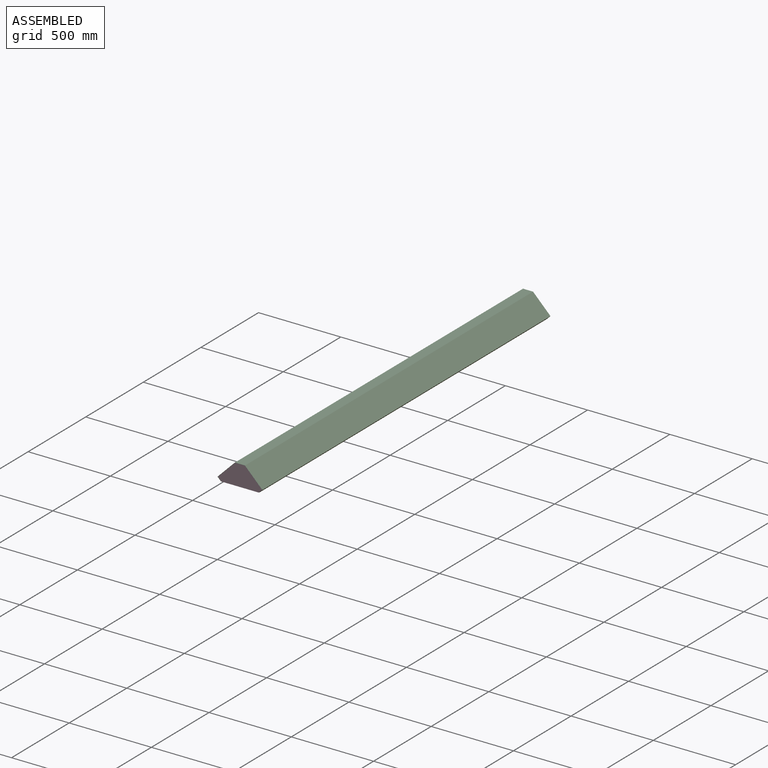
[diagram: assembled view]
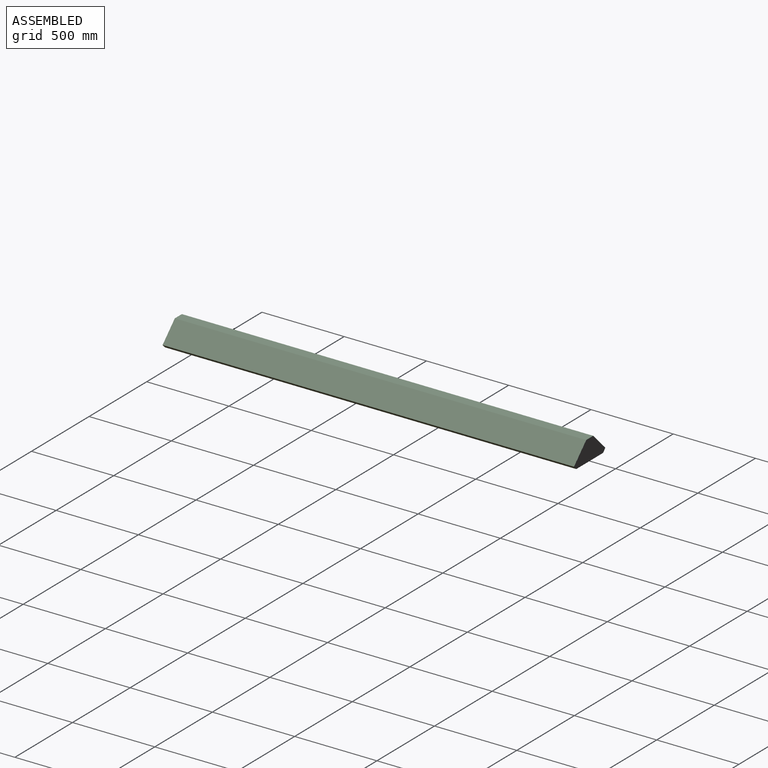
[diagram: assembled view, second angle]
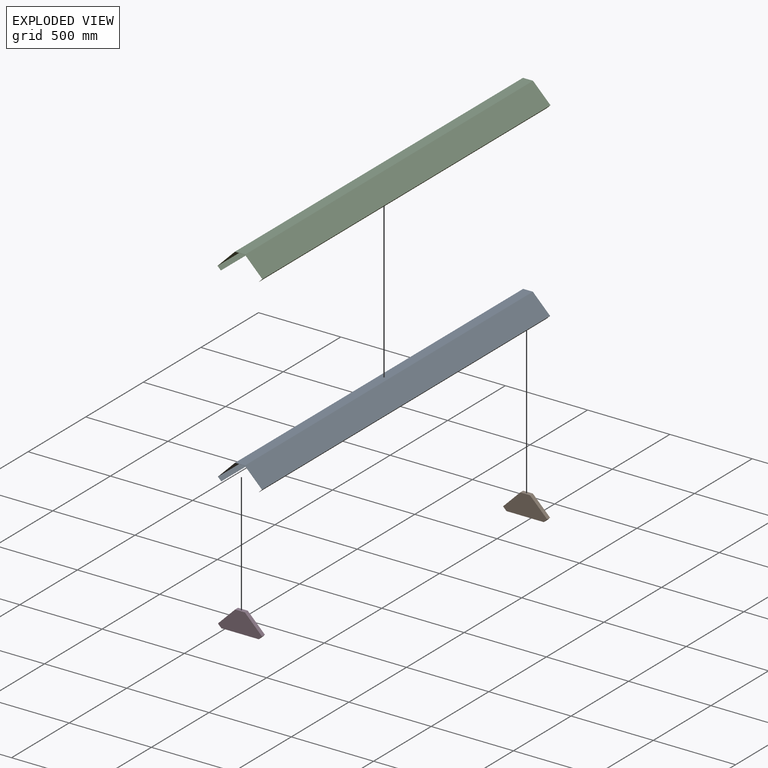
[diagram: exploded view]
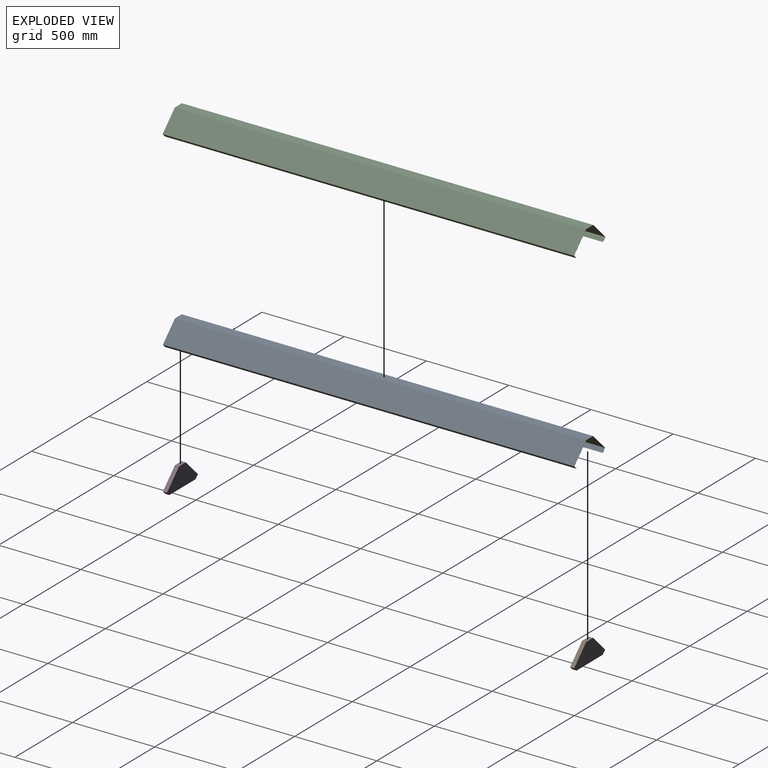
[diagram: exploded view, second angle]
ASSEMBLY  parts=4 mates=3
PART A: 14 faces, bbox 268.3x2500x125.2 mm
  f0: plane 2500x59mm, normal (0,0,1), area 147500mm2, adj f1,f11,f12,f13
  f1: plane 2500x104.65mm, normal (-0.71,0,0.71), area 370000mm2, adj f0,f2,f12,f13
  f2: plane 2500x20.51mm, normal (-0.71,0,-0.71), area 72500mm2, adj f1,f3,f12,f13
  f3: plane 2500x0.5mm, normal (0.71,0,-0.71), area 1750mm2, adj f2,f4,f12,f13
  f4: plane 2500x20.01mm, normal (0.71,0,0.71), area 70750mm2, adj f3,f5,f12,f13
  f5: plane 2500x103.95mm, normal (0.71,0,-0.71), area 367525.1mm2, adj f4,f6,f12,f13
  f6: plane 2500x58.42mm, normal (0,0,-1), area 146050.3mm2, adj f5,f7,f12,f13
  f7: plane 2500x103.95mm, normal (-0.71,0,-0.71), area 367525.1mm2, adj f6,f8,f12,f13
  f8: plane 2500x20.01mm, normal (-0.71,0,0.71), area 70750mm2, adj f7,f9,f12,f13
  f9: plane 2500x0.5mm, normal (-0.71,0,-0.71), area 1750mm2, adj f8,f10,f12,f13
  f10: plane 2500x20.51mm, normal (0.71,0,-0.71), area 72500mm2, adj f9,f11,f12,f13
  f11: plane 2500x104.65mm, normal (0.71,0,0.71), area 370000mm2, adj f0,f10,f12,f13
  f12: plane 268.3x125.16mm, normal (0,-1,0), area 287.7mm2, adj f0,f1,f2,f3,f4,f5,f6,f7
  f13: plane 268.3x125.16mm, normal (0,1,0), area 287.7mm2, adj f0,f1,f2,f3,f4,f5,f6,f7
PART B: 8 faces, bbox 268.3x25x125.2 mm
  f0: plane 59x25mm, normal (0,0,1), area 1475mm2, adj f1,f5,f6,f7
  f1: plane 104.65x104.65mm, normal (-0.71,0,0.71), area 3700mm2, adj f0,f2,f6,f7
  f2: plane 25x20.51mm, normal (-0.71,0,-0.71), area 725mm2, adj f1,f3,f6,f7
  f3: plane 227.29x25mm, normal (0,0,-1), area 5682.3mm2, adj f2,f4,f6,f7
  f4: plane 25x20.51mm, normal (0.71,0,-0.71), area 725mm2, adj f3,f5,f6,f7
  f5: plane 104.65x104.65mm, normal (0.71,0,0.71), area 3700mm2, adj f0,f4,f6,f7
  f6: plane 268.3x125.16mm, normal (0,-1,0), area 22207.8mm2, adj f0,f1,f2,f3,f4,f5
  f7: plane 268.3x125.16mm, normal (0,1,0), area 22207.8mm2, adj f0,f1,f2,f3,f4,f5
PART C: 14 faces, bbox 273.1x2500x126.6 mm
  f0: plane 2500x106.07mm, normal (-0.71,0,0.71), area 375000mm2, adj f1,f11,f12,f13
  f1: plane 2500x20.51mm, normal (-0.71,0,-0.71), area 72500mm2, adj f0,f2,f12,f13
  f2: plane 2500x0.5mm, normal (0.71,0,-0.71), area 1750mm2, adj f1,f3,f12,f13
  f3: plane 2500x20.01mm, normal (0.71,0,0.71), area 70750mm2, adj f2,f4,f12,f13
  f4: plane 2500x105.37mm, normal (0.71,0,-0.71), area 372525.1mm2, adj f3,f5,f12,f13
  f5: plane 2500x60.42mm, normal (0,0,-1), area 151050.3mm2, adj f4,f6,f12,f13
  f6: plane 2500x105.37mm, normal (-0.71,0,-0.71), area 372525.1mm2, adj f5,f7,f12,f13
  f7: plane 2500x20.01mm, normal (-0.71,0,0.71), area 70750mm2, adj f6,f8,f12,f13
  f8: plane 2500x0.5mm, normal (-0.71,0,-0.71), area 1750mm2, adj f7,f9,f12,f13
  f9: plane 2500x20.51mm, normal (0.71,0,-0.71), area 72500mm2, adj f8,f10,f12,f13
  f10: plane 2500x106.07mm, normal (0.71,0,0.71), area 375000mm2, adj f9,f11,f12,f13
  f11: plane 2500x61mm, normal (0,0,1), area 152500mm2, adj f0,f10,f12,f13
  f12: plane 273.13x126.57mm, normal (0,-1,0), area 291.9mm2, adj f0,f1,f2,f3,f4,f5,f6,f7
  f13: plane 273.13x126.57mm, normal (0,1,0), area 291.9mm2, adj f0,f1,f2,f3,f4,f5,f6,f7
PART D: same geometry as B
PLACE A t=(12.23,1251.56,-71.53)mm
PLACE B t=(12.23,1251.56,-72.23)mm
PLACE C t=(12.23,1251.56,-71.53)mm fixed
PLACE D t=(12.23,-1223.44,-72.23)mm
MATE fastened B.f0 <-> A.f6  axis (0,0,1) through (12.23,1251.56,53.64)mm
MATE fastened D.f0 <-> A.f6  axis (0,0,1) through (12.23,-1248.44,53.64)mm
MATE fastened A.f0 <-> C.f5  axis (0,0,1) through (12.23,-1248.44,54.34)mm
